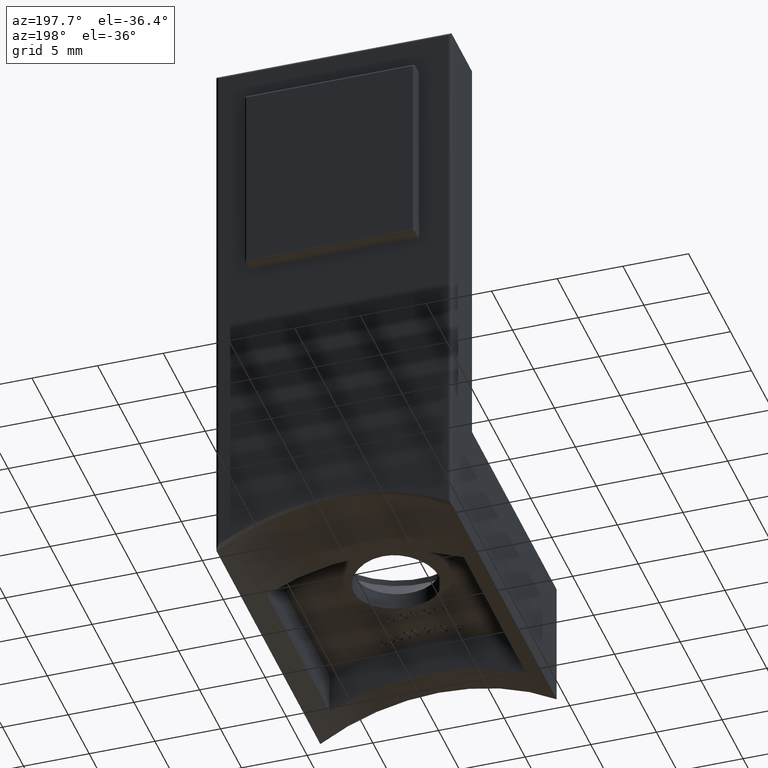
[diagram: clean part render]
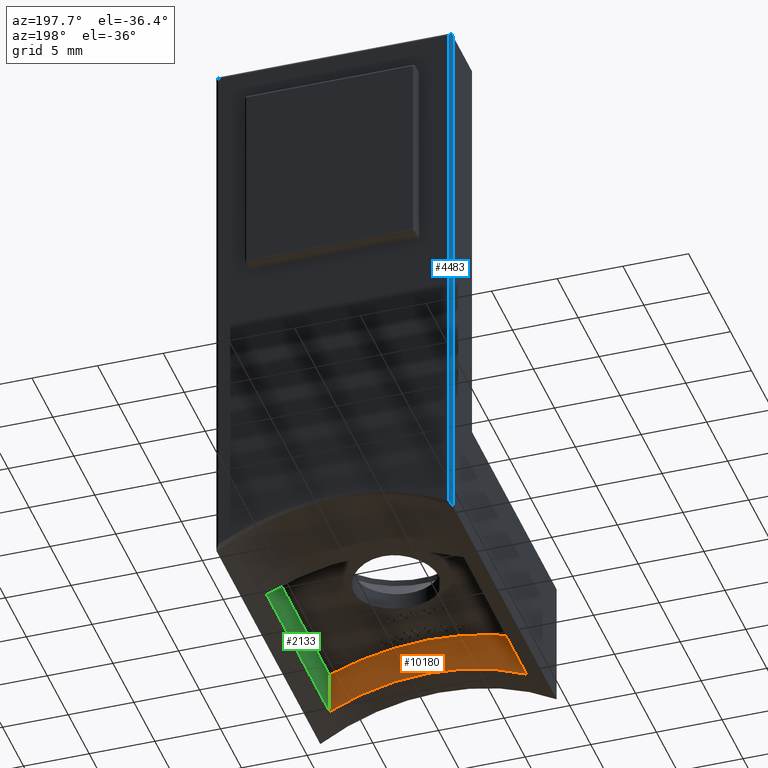
[diagram: same view with three faces highlighted in distinct colors, each labeled with its STEP entity id]
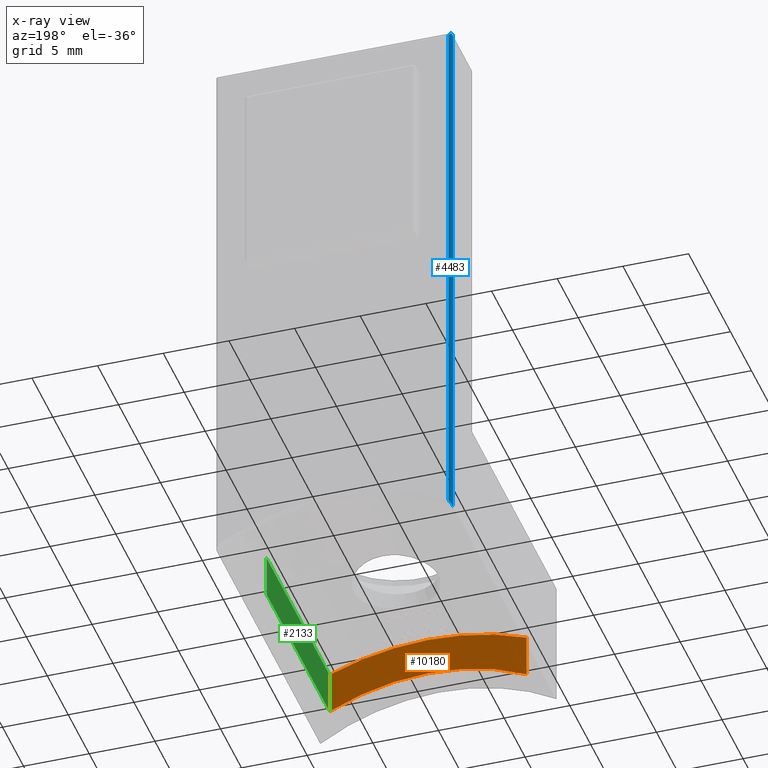
[diagram: x-ray of the same camera — body ghosted, the three highlighted faces saturated]
A machine part, auxiliary view with three faces highlighted in distinct colors.
The next image is the same camera in x-ray (body ghosted, the three faces saturated) — at least one of them is partly hidden behind the body in this view.
Their STEP definitions:

[orange] entity #10180 — the highlighted planar face has unit normal (0, -1, 0).
#595 = ORIENTED_EDGE ( 'NONE', *, *, #14274, .F. ) ;
#1700 = EDGE_CURVE ( 'NONE', #3410, #6033, #1972, .T. ) ;
#1972 = CIRCLE ( 'NONE', #5917, 16.85000000000000100 ) ;
#2089 = CARTESIAN_POINT ( 'NONE',  ( 0.0000000000000000000, -22.50000000000000000, -16.85000000000000100 ) ) ;
#2519 = DIRECTION ( 'NONE',  ( 0.0000000000000000000, 0.0000000000000000000, -1.000000000000000000 ) ) ;
#2567 = EDGE_CURVE ( 'NONE', #8491, #4911, #13209, .T. ) ;
#2891 = LINE ( 'NONE', #9856, #4991 ) ;
#2972 = DIRECTION ( 'NONE',  ( 0.0000000000000000000, -0.0000000000000000000, -1.000000000000000000 ) ) ;
#3100 = DIRECTION ( 'NONE',  ( 0.0000000000000000000, 0.0000000000000000000, -1.000000000000000000 ) ) ;
#3119 = CARTESIAN_POINT ( 'NONE',  ( 0.0000000000000000000, -22.50000000000000000, 2.999999999999999100 ) ) ;
#3410 = VERTEX_POINT ( 'NONE', #9776 ) ;
#3594 = VECTOR ( 'NONE', #8538, 1000.000000000000000 ) ;
#3967 = CARTESIAN_POINT ( 'NONE',  ( 7.500000000000003600, -22.50000000000000000, 1.528588085051581200 ) ) ;
#4748 = EDGE_CURVE ( 'NONE', #12307, #6033, #2891, .T. ) ;
#4894 = ORIENTED_EDGE ( 'NONE', *, *, #1700, .F. ) ;
#4911 = VERTEX_POINT ( 'NONE', #5995 ) ;
#4985 = CARTESIAN_POINT ( 'NONE',  ( -7.499999999999999100, -22.50000000000000000, 46.00100000000000500 ) ) ;
#4991 = VECTOR ( 'NONE', #5261, 1000.000000000000000 ) ;
#4998 = FACE_OUTER_BOUND ( 'NONE', #9819, .T. ) ;
#5256 = ORIENTED_EDGE ( 'NONE', *, *, #10154, .F. ) ;
#5257 = DIRECTION ( 'NONE',  ( 0.0000000000000000000, -1.000000000000000000, 0.0000000000000000000 ) ) ;
#5261 = DIRECTION ( 'NONE',  ( -0.0000000000000000000, -0.0000000000000000000, -1.000000000000000000 ) ) ;
#5917 = AXIS2_PLACEMENT_3D ( 'NONE', #5949, #12776, #2519 ) ;
#5949 = CARTESIAN_POINT ( 'NONE',  ( 0.0000000000000000000, -22.50000000000000000, -16.85000000000000100 ) ) ;
#5995 = CARTESIAN_POINT ( 'NONE',  ( -7.499999999999999100, -22.50000000000000000, 1.528588085051584700 ) ) ;
#6033 = VERTEX_POINT ( 'NONE', #10727 ) ;
#6511 = DIRECTION ( 'NONE',  ( 0.0000000000000000000, -1.000000000000000000, 0.0000000000000000000 ) ) ;
#6593 = AXIS2_PLACEMENT_3D ( 'NONE', #2089, #6511, #10845 ) ;
#7186 = CIRCLE ( 'NONE', #6593, 19.84999999999999800 ) ;
#7315 = CARTESIAN_POINT ( 'NONE',  ( 0.0000000000000000000, -22.50000000000000000, -16.85000000000000100 ) ) ;
#7354 = CARTESIAN_POINT ( 'NONE',  ( 0.0000000000000000000, -22.50000000000000000, 46.00100000000000500 ) ) ;
#7449 = DIRECTION ( 'NONE',  ( 0.0000000000000000000, -1.000000000000000000, 0.0000000000000000000 ) ) ;
#8457 = AXIS2_PLACEMENT_3D ( 'NONE', #7315, #14046, #12849 ) ;
#8491 = VERTEX_POINT ( 'NONE', #3119 ) ;
#8538 = DIRECTION ( 'NONE',  ( -0.0000000000000000000, -0.0000000000000000000, -1.000000000000000000 ) ) ;
#9321 = AXIS2_PLACEMENT_3D ( 'NONE', #10916, #5257, #3100 ) ;
#9673 = PLANE ( 'NONE',  #10435 ) ;
#9776 = CARTESIAN_POINT ( 'NONE',  ( 0.0000000000000000000, -22.50000000000000000, 0.0000000000000000000 ) ) ;
#9819 = EDGE_LOOP ( 'NONE', ( #5256, #11497, #595, #11289, #4894, #13183 ) ) ;
#9856 = CARTESIAN_POINT ( 'NONE',  ( 7.500000000000003600, -22.50000000000000000, 46.00100000000000500 ) ) ;
#10154 = EDGE_CURVE ( 'NONE', #4911, #10489, #10300, .T. ) ;
#10180 = ADVANCED_FACE ( 'NONE', ( #4998 ), #9673, .F. ) ;
#10300 = LINE ( 'NONE', #4985, #3594 ) ;
#10435 = AXIS2_PLACEMENT_3D ( 'NONE', #7354, #7449, #2972 ) ;
#10489 = VERTEX_POINT ( 'NONE', #13714 ) ;
#10727 = CARTESIAN_POINT ( 'NONE',  ( 7.500000000000003600, -22.50000000000000000, -1.761179635239869200 ) ) ;
#10845 = DIRECTION ( 'NONE',  ( 0.0000000000000000000, 0.0000000000000000000, -1.000000000000000000 ) ) ;
#10916 = CARTESIAN_POINT ( 'NONE',  ( 0.0000000000000000000, -22.50000000000000000, -16.85000000000000100 ) ) ;
#11289 = ORIENTED_EDGE ( 'NONE', *, *, #4748, .T. ) ;
#11497 = ORIENTED_EDGE ( 'NONE', *, *, #2567, .F. ) ;
#12307 = VERTEX_POINT ( 'NONE', #3967 ) ;
#12680 = EDGE_CURVE ( 'NONE', #10489, #3410, #14517, .T. ) ;
#12776 = DIRECTION ( 'NONE',  ( -0.0000000000000000000, 1.000000000000000000, -0.0000000000000000000 ) ) ;
#12849 = DIRECTION ( 'NONE',  ( 0.0000000000000000000, 0.0000000000000000000, -1.000000000000000000 ) ) ;
#13183 = ORIENTED_EDGE ( 'NONE', *, *, #12680, .F. ) ;
#13209 = CIRCLE ( 'NONE', #9321, 19.84999999999999800 ) ;
#13714 = CARTESIAN_POINT ( 'NONE',  ( -7.499999999999999100, -22.50000000000000000, -1.761179635239871000 ) ) ;
#14046 = DIRECTION ( 'NONE',  ( -0.0000000000000000000, 1.000000000000000000, -0.0000000000000000000 ) ) ;
#14274 = EDGE_CURVE ( 'NONE', #12307, #8491, #7186, .T. ) ;
#14517 = CIRCLE ( 'NONE', #8457, 16.85000000000000100 ) ;

[blue] entity #4483 — the highlighted cylindrical surface (edge-blend (fillet) strip) has radius 0.25 mm, axis along (0, 0, -1).
#105 = ORIENTED_EDGE ( 'NONE', *, *, #6333, .F. ) ;
#138 = CYLINDRICAL_SURFACE ( 'NONE', #1392, 0.2500000000000002200 ) ;
#216 = ORIENTED_EDGE ( 'NONE', *, *, #10100, .T. ) ;
#295 = EDGE_CURVE ( 'NONE', #7168, #1664, #2407, .T. ) ;
#973 = CARTESIAN_POINT ( 'NONE',  ( -8.850916226985196600, -0.01393222604999664100, -2.336652879341552900 ) ) ;
#1328 = CARTESIAN_POINT ( 'NONE',  ( -9.000000000000000000, -0.2500000000000000000, 39.75000000000000000 ) ) ;
#1392 = AXIS2_PLACEMENT_3D ( 'NONE', #12439, #12540, #8021 ) ;
#1664 = VERTEX_POINT ( 'NONE', #12391 ) ;
#1739 = B_SPLINE_CURVE_WITH_KNOTS ( 'NONE', 3,
 ( #3255, #7729, #973, #8873, #11116, #5932, #4925, #10560 ),
 .UNSPECIFIED., .F., .F.,
 ( 4, 2, 2, 4 ),
 ( -3.411629828712934400E-006, 0.0003022244099339507400, 0.0004550424298152813100, 0.0006078604496966118700 ),
 .UNSPECIFIED. ) ;
#2114 = DIRECTION ( 'NONE',  ( 0.0000000000000000000, 0.0000000000000000000, 1.000000000000000000 ) ) ;
#2319 = VERTEX_POINT ( 'NONE', #9110 ) ;
#2407 = LINE ( 'NONE', #2882, #14345 ) ;
#2838 = CARTESIAN_POINT ( 'NONE',  ( -8.926776695296634800, -0.07322330470336266300, 39.92677669529663800 ) ) ;
#2882 = CARTESIAN_POINT ( 'NONE',  ( -9.000000000000000000, -0.2500000000000000000, -2.604913127678021300 ) ) ;
#3008 =( BOUNDED_CURVE ( )  B_SPLINE_CURVE ( 3, ( #12617, #9584, #8440, #2838 ),
 .UNSPECIFIED., .F., .T. ) 
 B_SPLINE_CURVE_WITH_KNOTS ( ( 4, 4 ),
 ( 1.570796326794896600, 2.356194490192341700 ),
 .UNSPECIFIED. ) 
 CURVE ( )  GEOMETRIC_REPRESENTATION_ITEM ( )  RATIONAL_B_SPLINE_CURVE ( ( 1.000000000000000000, 0.9492530216741915700, 0.9492530216741915700, 1.000000000000000000 ) ) 
 REPRESENTATION_ITEM ( '' )  );
#3255 = CARTESIAN_POINT ( 'NONE',  ( -8.749999999999998200, 0.0000000000000000000, -2.158250614715755000 ) ) ;
#3605 = CARTESIAN_POINT ( 'NONE',  ( -9.000000000000001800, -0.1828097244838272900, 39.81719027551617500 ) ) ;
#4483 = ADVANCED_FACE ( 'NONE', ( #12668 ), #138, .T. ) ;
#4672 = CARTESIAN_POINT ( 'NONE',  ( -8.974287394743912600, -0.1207340041506410700, 39.87926599584935200 ) ) ;
#4925 = CARTESIAN_POINT ( 'NONE',  ( -9.000000000000000000, -0.1976798524568395000, -2.604913127678021700 ) ) ;
#5932 = CARTESIAN_POINT ( 'NONE',  ( -8.983231000998001600, -0.1524742897682522500, -2.574472266691441500 ) ) ;
#6333 = EDGE_CURVE ( 'NONE', #2319, #8273, #10782, .T. ) ;
#7032 = EDGE_LOOP ( 'NONE', ( #8067, #8880, #14292, #105, #216 ) ) ;
#7168 = VERTEX_POINT ( 'NONE', #14047 ) ;
#7392 = CARTESIAN_POINT ( 'NONE',  ( -8.749999999999998200, 0.0000000000000000000, 39.75000000000000000 ) ) ;
#7729 = CARTESIAN_POINT ( 'NONE',  ( -8.800336264582970400, -1.200669202732970200E-016, -2.246825750544829200 ) ) ;
#8021 = DIRECTION ( 'NONE',  ( -1.000000000000000000, 0.0000000000000000000, 0.0000000000000000000 ) ) ;
#8067 = ORIENTED_EDGE ( 'NONE', *, *, #295, .F. ) ;
#8273 = VERTEX_POINT ( 'NONE', #7392 ) ;
#8440 = CARTESIAN_POINT ( 'NONE',  ( -8.879265995849358700, -0.02571260525608493400, 39.87926599584935200 ) ) ;
#8851 = VECTOR ( 'NONE', #2114, 1000.000000000000000 ) ;
#8873 = CARTESIAN_POINT ( 'NONE',  ( -8.921533542411127700, -0.06580102193651334000, -2.463165940613916600 ) ) ;
#8880 = ORIENTED_EDGE ( 'NONE', *, *, #13722, .T. ) ;
#8956 = EDGE_CURVE ( 'NONE', #8273, #13553, #3008, .T. ) ;
#9110 = CARTESIAN_POINT ( 'NONE',  ( -8.749999999999998200, 0.0000000000000000000, -2.158250614715755000 ) ) ;
#9584 = CARTESIAN_POINT ( 'NONE',  ( -8.817190275516173500, -1.585161080805902100E-016, 39.81719027551618200 ) ) ;
#10100 = EDGE_CURVE ( 'NONE', #2319, #1664, #1739, .T. ) ;
#10560 = CARTESIAN_POINT ( 'NONE',  ( -9.000000000000000000, -0.2500000000000002200, -2.604913127678021300 ) ) ;
#10782 = LINE ( 'NONE', #13274, #8851 ) ;
#11116 = CARTESIAN_POINT ( 'NONE',  ( -8.944323756079983300, -0.08830200432378689000, -2.504192367568700600 ) ) ;
#11368 = CARTESIAN_POINT ( 'NONE',  ( -8.926776695296634800, -0.07322330470336266300, 39.92677669529663800 ) ) ;
#11919 = DIRECTION ( 'NONE',  ( -0.0000000000000000000, 0.0000000000000000000, -1.000000000000000000 ) ) ;
#12391 = CARTESIAN_POINT ( 'NONE',  ( -9.000000000000000000, -0.2500000000000002200, -2.604913127678021300 ) ) ;
#12439 = CARTESIAN_POINT ( 'NONE',  ( -8.749999999999998200, -0.2500000000000000000, 40.00000000000000000 ) ) ;
#12540 = DIRECTION ( 'NONE',  ( 0.0000000000000000000, 0.0000000000000000000, -1.000000000000000000 ) ) ;
#12617 = CARTESIAN_POINT ( 'NONE',  ( -8.749999999999998200, 0.0000000000000000000, 39.75000000000000000 ) ) ;
#12668 = FACE_OUTER_BOUND ( 'NONE', #7032, .T. ) ;
#13274 = CARTESIAN_POINT ( 'NONE',  ( -8.749999999999998200, 0.0000000000000000000, 40.00000000000000000 ) ) ;
#13553 = VERTEX_POINT ( 'NONE', #14516 ) ;
#13722 = EDGE_CURVE ( 'NONE', #7168, #13553, #14182, .T. ) ;
#14047 = CARTESIAN_POINT ( 'NONE',  ( -9.000000000000000000, -0.2500000000000000000, 39.75000000000000000 ) ) ;
#14182 =( BOUNDED_CURVE ( )  B_SPLINE_CURVE ( 3, ( #1328, #3605, #4672, #11368 ),
 .UNSPECIFIED., .F., .T. ) 
 B_SPLINE_CURVE_WITH_KNOTS ( ( 4, 4 ),
 ( 1.570796326794896800, 2.356194490192346600 ),
 .UNSPECIFIED. ) 
 CURVE ( )  GEOMETRIC_REPRESENTATION_ITEM ( )  RATIONAL_B_SPLINE_CURVE ( ( 1.000000000000000000, 0.9492530216741910100, 0.9492530216741910100, 1.000000000000000000 ) ) 
 REPRESENTATION_ITEM ( '' )  );
#14292 = ORIENTED_EDGE ( 'NONE', *, *, #8956, .F. ) ;
#14345 = VECTOR ( 'NONE', #11919, 1000.000000000000000 ) ;
#14516 = CARTESIAN_POINT ( 'NONE',  ( -8.926776695296634800, -0.07322330470336266300, 39.92677669529663800 ) ) ;

[green] entity #2133 — the highlighted planar face has unit normal (1, -0, 0).
#1550 = EDGE_CURVE ( 'NONE', #6033, #10287, #14175, .T. ) ;
#1655 = EDGE_CURVE ( 'NONE', #14051, #10287, #2499, .T. ) ;
#2133 = ADVANCED_FACE ( 'NONE', ( #9367 ), #3116, .F. ) ;
#2499 = LINE ( 'NONE', #8013, #4945 ) ;
#2891 = LINE ( 'NONE', #9856, #4991 ) ;
#3116 = PLANE ( 'NONE',  #9415 ) ;
#3161 = ORIENTED_EDGE ( 'NONE', *, *, #11013, .F. ) ;
#3601 = LINE ( 'NONE', #7023, #10814 ) ;
#3967 = CARTESIAN_POINT ( 'NONE',  ( 7.500000000000003600, -22.50000000000000000, 1.528588085051581200 ) ) ;
#4566 = CARTESIAN_POINT ( 'NONE',  ( 7.500000000000003600, -25.00000000000000000, -1.761179635239872800 ) ) ;
#4616 = ORIENTED_EDGE ( 'NONE', *, *, #4748, .F. ) ;
#4622 = DIRECTION ( 'NONE',  ( -0.0000000000000000000, -0.0000000000000000000, -1.000000000000000000 ) ) ;
#4748 = EDGE_CURVE ( 'NONE', #12307, #6033, #2891, .T. ) ;
#4945 = VECTOR ( 'NONE', #4622, 1000.000000000000000 ) ;
#4991 = VECTOR ( 'NONE', #5261, 1000.000000000000000 ) ;
#5261 = DIRECTION ( 'NONE',  ( -0.0000000000000000000, -0.0000000000000000000, -1.000000000000000000 ) ) ;
#5501 = ORIENTED_EDGE ( 'NONE', *, *, #1550, .F. ) ;
#5610 = DIRECTION ( 'NONE',  ( -0.0000000000000000000, 1.000000000000000000, -0.0000000000000000000 ) ) ;
#6033 = VERTEX_POINT ( 'NONE', #10727 ) ;
#6357 = DIRECTION ( 'NONE',  ( 1.000000000000000000, -1.156482317317871200E-016, 0.0000000000000000000 ) ) ;
#6388 = CARTESIAN_POINT ( 'NONE',  ( 7.500000000000005300, -7.499999999999996400, 1.528588085051581200 ) ) ;
#7023 = CARTESIAN_POINT ( 'NONE',  ( 7.500000000000003600, -25.00000000000000000, 1.528588085051581200 ) ) ;
#8013 = CARTESIAN_POINT ( 'NONE',  ( 7.500000000000005300, -7.499999999999997300, 46.00100000000000500 ) ) ;
#8029 = VECTOR ( 'NONE', #5610, 1000.000000000000000 ) ;
#9367 = FACE_OUTER_BOUND ( 'NONE', #12503, .T. ) ;
#9415 = AXIS2_PLACEMENT_3D ( 'NONE', #13141, #6357, #13182 ) ;
#9856 = CARTESIAN_POINT ( 'NONE',  ( 7.500000000000003600, -22.50000000000000000, 46.00100000000000500 ) ) ;
#10287 = VERTEX_POINT ( 'NONE', #11466 ) ;
#10727 = CARTESIAN_POINT ( 'NONE',  ( 7.500000000000003600, -22.50000000000000000, -1.761179635239869200 ) ) ;
#10814 = VECTOR ( 'NONE', #13674, 1000.000000000000000 ) ;
#11013 = EDGE_CURVE ( 'NONE', #14051, #12307, #3601, .T. ) ;
#11466 = CARTESIAN_POINT ( 'NONE',  ( 7.500000000000005300, -7.499999999999996400, -1.761179635239874500 ) ) ;
#12307 = VERTEX_POINT ( 'NONE', #3967 ) ;
#12503 = EDGE_LOOP ( 'NONE', ( #4616, #3161, #12726, #5501 ) ) ;
#12726 = ORIENTED_EDGE ( 'NONE', *, *, #1655, .T. ) ;
#13141 = CARTESIAN_POINT ( 'NONE',  ( 7.500000000000006200, -8.673617379884041400E-016, 46.00100000000000500 ) ) ;
#13182 = DIRECTION ( 'NONE',  ( 1.156482317317871200E-016, 1.000000000000000000, 0.0000000000000000000 ) ) ;
#13674 = DIRECTION ( 'NONE',  ( 0.0000000000000000000, -1.000000000000000000, 0.0000000000000000000 ) ) ;
#14051 = VERTEX_POINT ( 'NONE', #6388 ) ;
#14175 = LINE ( 'NONE', #4566, #8029 ) ;